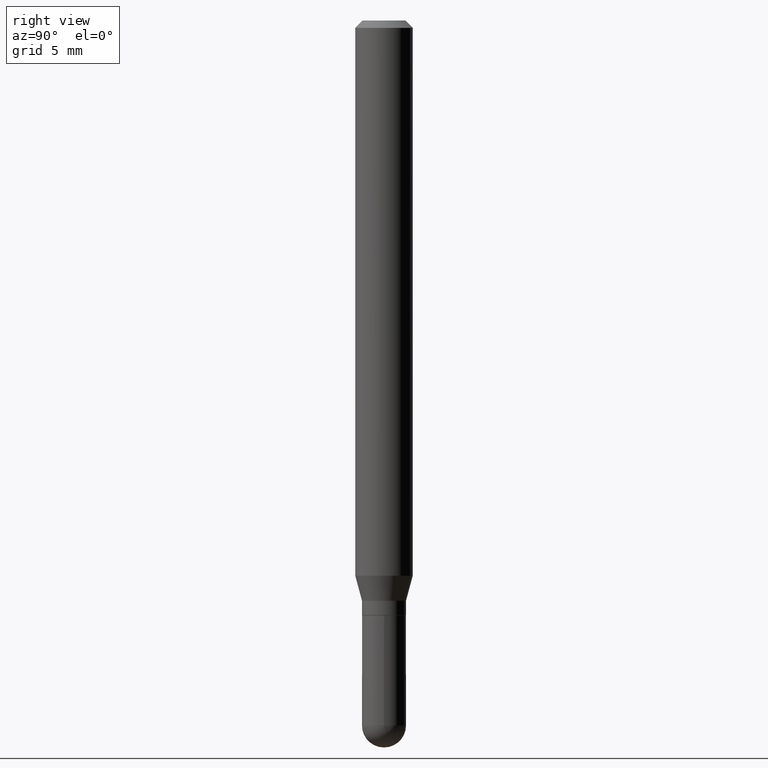
[diagram: clean part render]
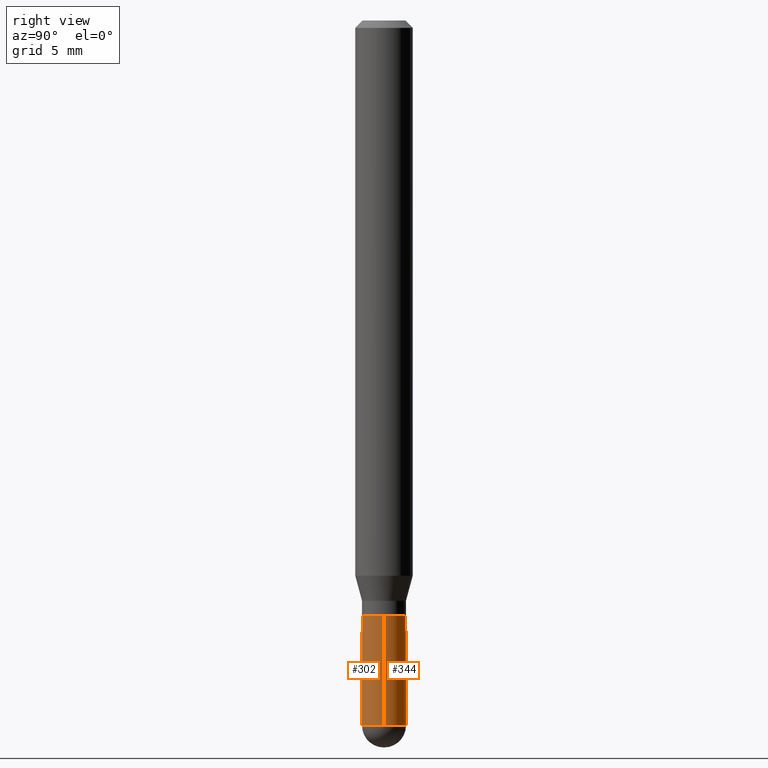
[diagram: same view with one multi-face feature highlighted, each face labeled with its STEP entity id]
A machine part, right view. The highlighted faces form ONE feature: a constant-radius fillet chain: 2 tangent blend faces with common blend radius 1.1506 mm. The faces share edges in the B-rep.
Their STEP definitions:
[1] entity #302 (Cylinder):
#7 = DIRECTION ( 'NONE',  ( 1.000000000000000000, -6.982962677686271444E-15, 0.000000000000000000 ) ) ;
#12 = DIRECTION ( 'NONE',  ( -2.445468806185136597E-29, 3.491481338843145583E-15, 1.000000000000000000 ) ) ;
#28 = VECTOR ( 'NONE', #162, 39.37007874015748143 ) ;
#42 = ORIENTED_EDGE ( 'NONE', *, *, #386, .F. ) ;
#54 = CARTESIAN_POINT ( 'NONE',  ( -3.163282092991523864E-16, -0.04530000000000506538, -1.450799999999999423 ) ) ;
#65 = AXIS2_PLACEMENT_3D ( 'NONE', #384, #12, #7 ) ;
#87 = EDGE_CURVE ( 'NONE', #417, #389, #123, .T. ) ;
#88 = CARTESIAN_POINT ( 'NONE',  ( 0.04530000000000000693, -4.986533648135779220E-15, -1.450799999999999645 ) ) ;
#100 = ORIENTED_EDGE ( 'NONE', *, *, #174, .T. ) ;
#110 = ORIENTED_EDGE ( 'NONE', *, *, #348, .T. ) ;
#117 = DIRECTION ( 'NONE',  ( -2.445468806185136597E-29, 3.491481338843145583E-15, 1.000000000000000000 ) ) ;
#122 = CARTESIAN_POINT ( 'NONE',  ( -0.04530000000000000693, 3.218758592993254334E-16, -2.228277595885472564E-30 ) ) ;
#123 = CIRCLE ( 'NONE', #65, 0.04529999999999999999 ) ;
#137 = DIRECTION ( 'NONE',  ( -2.445468806185136597E-29, 3.491481338843145583E-15, 1.000000000000000000 ) ) ;
#141 = EDGE_CURVE ( 'NONE', #146, #389, #167, .T. ) ;
#146 = VERTEX_POINT ( 'NONE', #88 ) ;
#155 = VECTOR ( 'NONE', #295, 39.37007874015748143 ) ;
#162 = DIRECTION ( 'NONE',  ( -2.445468806185136877E-29, 3.491481338843145188E-15, 1.000000000000000000 ) ) ;
#164 = AXIS2_PLACEMENT_3D ( 'NONE', #402, #117, #366 ) ;
#167 = LINE ( 'NONE', #339, #28 ) ;
#174 = EDGE_CURVE ( 'NONE', #189, #313, #236, .T. ) ;
#189 = VERTEX_POINT ( 'NONE', #246 ) ;
#193 = AXIS2_PLACEMENT_3D ( 'NONE', #482, #249, #413 ) ;
#236 = CIRCLE ( 'NONE', #164, 0.04530000000000000693 ) ;
#246 = CARTESIAN_POINT ( 'NONE',  ( -0.04530000000000000693, -4.348329579537264718E-15, -1.450799999999999645 ) ) ;
#249 = DIRECTION ( 'NONE',  ( -2.445468806185136597E-29, 3.491481338843145583E-15, 1.000000000000000000 ) ) ;
#265 = CARTESIAN_POINT ( 'NONE',  ( 0.000000000000000000, 0.000000000000000000, 0.000000000000000000 ) ) ;
#295 = DIRECTION ( 'NONE',  ( -2.445468806185136877E-29, 3.491481338843145188E-15, 1.000000000000000000 ) ) ;
#298 = ORIENTED_EDGE ( 'NONE', *, *, #141, .T. ) ;
#302 = ADVANCED_FACE ( 'NONE', ( #460 ), #493, .T. ) ;
#305 = CIRCLE ( 'NONE', #193, 0.04530000000000000693 ) ;
#313 = VERTEX_POINT ( 'NONE', #54 ) ;
#339 = CARTESIAN_POINT ( 'NONE',  ( 0.04530000000000000693, -3.163282092991879344E-16, 2.208908079435559539E-30 ) ) ;
#343 = ORIENTED_EDGE ( 'NONE', *, *, #87, .F. ) ;
#348 = EDGE_CURVE ( 'NONE', #313, #146, #305, .T. ) ;
#362 = EDGE_LOOP ( 'NONE', ( #42, #100, #110, #298, #343 ) ) ;
#366 = DIRECTION ( 'NONE',  ( 1.000000000000000000, -6.982962677686269866E-15, 0.000000000000000000 ) ) ;
#384 = CARTESIAN_POINT ( 'NONE',  ( 2.994232006293080857E-29, -4.274969751279546755E-15, -1.224399999999999933 ) ) ;
#386 = EDGE_CURVE ( 'NONE', #189, #417, #478, .T. ) ;
#388 = CARTESIAN_POINT ( 'NONE',  ( -0.04529999999999999999, -4.348329579537264718E-15, -1.224399999999999933 ) ) ;
#389 = VERTEX_POINT ( 'NONE', #447 ) ;
#402 = CARTESIAN_POINT ( 'NONE',  ( 3.547886144013395202E-29, -5.065441126393634337E-15, -1.450799999999999645 ) ) ;
#413 = DIRECTION ( 'NONE',  ( 1.000000000000000000, -6.982962677686269866E-15, 0.000000000000000000 ) ) ;
#417 = VERTEX_POINT ( 'NONE', #388 ) ;
#421 = DIRECTION ( 'NONE',  ( 1.000000000000000000, -6.982962677686266711E-15, 4.876176775795936353E-29 ) ) ;
#447 = CARTESIAN_POINT ( 'NONE',  ( 0.04529999999999999999, -4.591297960578735035E-15, -1.224399999999999933 ) ) ;
#460 = FACE_OUTER_BOUND ( 'NONE', #362, .T. ) ;
#474 = AXIS2_PLACEMENT_3D ( 'NONE', #265, #137, #421 ) ;
#478 = LINE ( 'NONE', #122, #155 ) ;
#482 = CARTESIAN_POINT ( 'NONE',  ( 3.547886144013395202E-29, -5.065441126393634337E-15, -1.450799999999999645 ) ) ;
#493 = CYLINDRICAL_SURFACE ( 'NONE', #474, 0.04530000000000000693 ) ;
[2] entity #344 (Cylinder):
#11 = DIRECTION ( 'NONE',  ( -2.445468806185136597E-29, 3.491481338843145583E-15, 1.000000000000000000 ) ) ;
#19 = ORIENTED_EDGE ( 'NONE', *, *, #141, .F. ) ;
#28 = VECTOR ( 'NONE', #162, 39.37007874015748143 ) ;
#69 = EDGE_LOOP ( 'NONE', ( #97, #262, #436, #19, #307 ) ) ;
#70 = CARTESIAN_POINT ( 'NONE',  ( 3.218758592993607350E-16, 0.04529999999999492072, -1.450800000000000090 ) ) ;
#88 = CARTESIAN_POINT ( 'NONE',  ( 0.04530000000000000693, -4.986533648135779220E-15, -1.450799999999999645 ) ) ;
#97 = ORIENTED_EDGE ( 'NONE', *, *, #448, .T. ) ;
#112 = CIRCLE ( 'NONE', #134, 0.04530000000000000693 ) ;
#120 = DIRECTION ( 'NONE',  ( -2.445468806185136597E-29, 3.491481338843145583E-15, 1.000000000000000000 ) ) ;
#122 = CARTESIAN_POINT ( 'NONE',  ( -0.04530000000000000693, 3.218758592993254334E-16, -2.228277595885472564E-30 ) ) ;
#127 = DIRECTION ( 'NONE',  ( -2.445468806185136597E-29, 3.491481338843145583E-15, 1.000000000000000000 ) ) ;
#134 = AXIS2_PLACEMENT_3D ( 'NONE', #489, #285, #257 ) ;
#141 = EDGE_CURVE ( 'NONE', #146, #389, #167, .T. ) ;
#144 = EDGE_CURVE ( 'NONE', #146, #459, #275, .T. ) ;
#146 = VERTEX_POINT ( 'NONE', #88 ) ;
#155 = VECTOR ( 'NONE', #295, 39.37007874015748143 ) ;
#162 = DIRECTION ( 'NONE',  ( -2.445468806185136877E-29, 3.491481338843145188E-15, 1.000000000000000000 ) ) ;
#163 = CYLINDRICAL_SURFACE ( 'NONE', #411, 0.04530000000000000693 ) ;
#167 = LINE ( 'NONE', #339, #28 ) ;
#189 = VERTEX_POINT ( 'NONE', #246 ) ;
#191 = AXIS2_PLACEMENT_3D ( 'NONE', #420, #127, #450 ) ;
#217 = CIRCLE ( 'NONE', #445, 0.04529999999999999999 ) ;
#226 = CARTESIAN_POINT ( 'NONE',  ( 2.994232006293080857E-29, -4.274969751279546755E-15, -1.224399999999999933 ) ) ;
#246 = CARTESIAN_POINT ( 'NONE',  ( -0.04530000000000000693, -4.348329579537264718E-15, -1.450799999999999645 ) ) ;
#257 = DIRECTION ( 'NONE',  ( 1.000000000000000000, -6.982962677686269866E-15, 0.000000000000000000 ) ) ;
#262 = ORIENTED_EDGE ( 'NONE', *, *, #386, .T. ) ;
#275 = CIRCLE ( 'NONE', #191, 0.04530000000000000693 ) ;
#285 = DIRECTION ( 'NONE',  ( -2.445468806185136597E-29, 3.491481338843145583E-15, 1.000000000000000000 ) ) ;
#295 = DIRECTION ( 'NONE',  ( -2.445468806185136877E-29, 3.491481338843145188E-15, 1.000000000000000000 ) ) ;
#307 = ORIENTED_EDGE ( 'NONE', *, *, #144, .T. ) ;
#308 = DIRECTION ( 'NONE',  ( 1.000000000000000000, -6.982962677686271444E-15, 0.000000000000000000 ) ) ;
#310 = EDGE_CURVE ( 'NONE', #389, #417, #217, .T. ) ;
#339 = CARTESIAN_POINT ( 'NONE',  ( 0.04530000000000000693, -3.163282092991879344E-16, 2.208908079435559539E-30 ) ) ;
#344 = ADVANCED_FACE ( 'NONE', ( #476 ), #163, .T. ) ;
#375 = CARTESIAN_POINT ( 'NONE',  ( 0.000000000000000000, 0.000000000000000000, 0.000000000000000000 ) ) ;
#386 = EDGE_CURVE ( 'NONE', #189, #417, #478, .T. ) ;
#388 = CARTESIAN_POINT ( 'NONE',  ( -0.04529999999999999999, -4.348329579537264718E-15, -1.224399999999999933 ) ) ;
#389 = VERTEX_POINT ( 'NONE', #447 ) ;
#411 = AXIS2_PLACEMENT_3D ( 'NONE', #375, #120, #443 ) ;
#417 = VERTEX_POINT ( 'NONE', #388 ) ;
#420 = CARTESIAN_POINT ( 'NONE',  ( 3.547886144013395202E-29, -5.065441126393634337E-15, -1.450799999999999645 ) ) ;
#436 = ORIENTED_EDGE ( 'NONE', *, *, #310, .F. ) ;
#443 = DIRECTION ( 'NONE',  ( 1.000000000000000000, -6.982962677686266711E-15, 4.876176775795936353E-29 ) ) ;
#445 = AXIS2_PLACEMENT_3D ( 'NONE', #226, #11, #308 ) ;
#447 = CARTESIAN_POINT ( 'NONE',  ( 0.04529999999999999999, -4.591297960578735035E-15, -1.224399999999999933 ) ) ;
#448 = EDGE_CURVE ( 'NONE', #459, #189, #112, .T. ) ;
#450 = DIRECTION ( 'NONE',  ( 1.000000000000000000, -6.982962677686269866E-15, 0.000000000000000000 ) ) ;
#459 = VERTEX_POINT ( 'NONE', #70 ) ;
#476 = FACE_OUTER_BOUND ( 'NONE', #69, .T. ) ;
#478 = LINE ( 'NONE', #122, #155 ) ;
#489 = CARTESIAN_POINT ( 'NONE',  ( 3.547886144013395202E-29, -5.065441126393634337E-15, -1.450799999999999645 ) ) ;